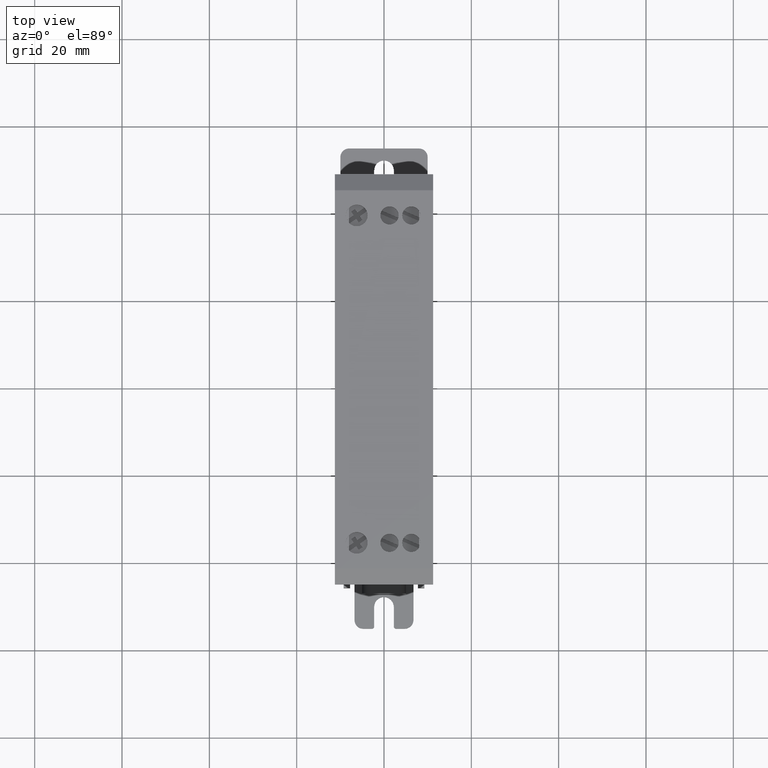
[diagram: clean part render]
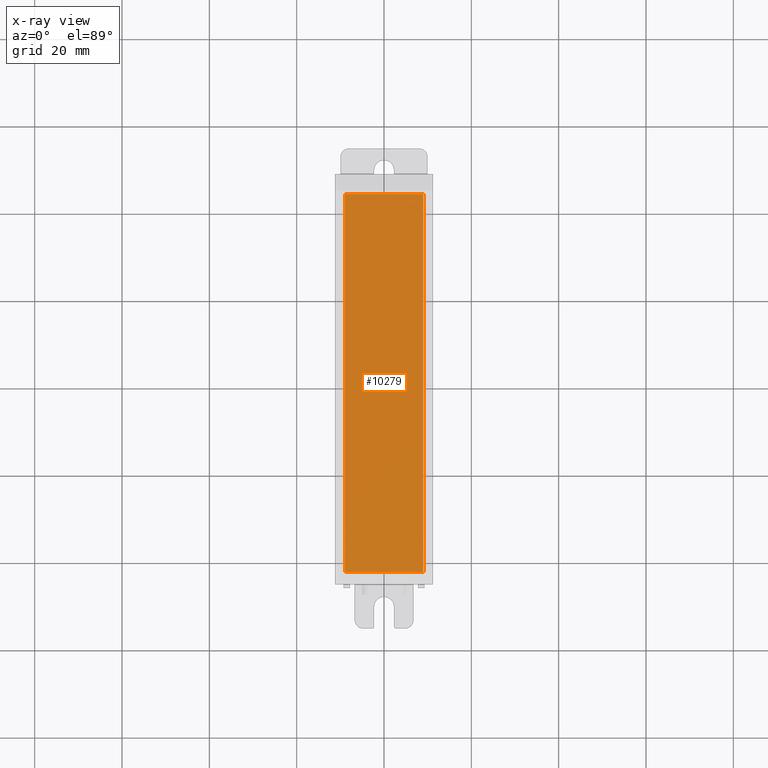
[diagram: x-ray — body ghosted, one internal face saturated and labeled with its STEP entity id]
A machine part, top view, then the same camera in x-ray: the body is ghosted and one INTERNAL B-rep face — a face not visible from any outside direction — is saturated and labeled: STEP entity #10279.
In plain terms, the highlighted planar face has unit normal (0, 0, 1).
Its self-contained STEP definition (entity closure, byte-faithful):
#431 = CARTESIAN_POINT ( 'NONE',  ( 0.000000000000000000, 1.704724409448818978, 0.000000000000000000 ) ) ;
#453 = LINE ( 'NONE', #12628, #6080 ) ;
#458 = PLANE ( 'NONE',  #15716 ) ;
#618 = FACE_OUTER_BOUND ( 'NONE', #14482, .T. ) ;
#995 = VERTEX_POINT ( 'NONE', #15344 ) ;
#1281 = VECTOR ( 'NONE', #4789, 39.37007874015748143 ) ;
#1408 = CARTESIAN_POINT ( 'NONE',  ( 0.3543307086614173040, 0.000000000000000000, 0.000000000000000000 ) ) ;
#1676 = ORIENTED_EDGE ( 'NONE', *, *, #10607, .T. ) ;
#2174 = CARTESIAN_POINT ( 'NONE',  ( -0.3543307086614173040, 1.704724409448818978, 0.000000000000000000 ) ) ;
#3081 = VECTOR ( 'NONE', #10376, 39.37007874015748143 ) ;
#3277 = CARTESIAN_POINT ( 'NONE',  ( 0.3543307086614173040, 1.704724409448818978, 0.000000000000000000 ) ) ;
#3578 = LINE ( 'NONE', #11043, #1281 ) ;
#4049 = DIRECTION ( 'NONE',  ( 0.000000000000000000, 1.000000000000000000, 0.000000000000000000 ) ) ;
#4282 = EDGE_CURVE ( 'NONE', #4591, #995, #453, .T. ) ;
#4591 = VERTEX_POINT ( 'NONE', #2174 ) ;
#4789 = DIRECTION ( 'NONE',  ( 1.000000000000000000, 0.000000000000000000, 0.000000000000000000 ) ) ;
#6080 = VECTOR ( 'NONE', #6609, 39.37007874015748143 ) ;
#6114 = VECTOR ( 'NONE', #4049, 39.37007874015748143 ) ;
#6609 = DIRECTION ( 'NONE',  ( -0.000000000000000000, -1.000000000000000000, -0.000000000000000000 ) ) ;
#7061 = ORIENTED_EDGE ( 'NONE', *, *, #8920, .T. ) ;
#8920 = EDGE_CURVE ( 'NONE', #13475, #4591, #14166, .T. ) ;
#9003 = DIRECTION ( 'NONE',  ( 1.000000000000000000, 0.000000000000000000, 0.000000000000000000 ) ) ;
#9172 = DIRECTION ( 'NONE',  ( 0.000000000000000000, 0.000000000000000000, 1.000000000000000000 ) ) ;
#10279 = ADVANCED_FACE ( 'NONE', ( #618 ), #458, .T. ) ;
#10376 = DIRECTION ( 'NONE',  ( -1.000000000000000000, -0.000000000000000000, -0.000000000000000000 ) ) ;
#10449 = LINE ( 'NONE', #1408, #6114 ) ;
#10607 = EDGE_CURVE ( 'NONE', #995, #15130, #3578, .T. ) ;
#11043 = CARTESIAN_POINT ( 'NONE',  ( 0.000000000000000000, -1.704724409448818978, 0.000000000000000000 ) ) ;
#11142 = EDGE_CURVE ( 'NONE', #15130, #13475, #10449, .T. ) ;
#11845 = ORIENTED_EDGE ( 'NONE', *, *, #4282, .T. ) ;
#11853 = CARTESIAN_POINT ( 'NONE',  ( 0.3543307086614173040, -1.704724409448818978, 0.000000000000000000 ) ) ;
#12090 = ORIENTED_EDGE ( 'NONE', *, *, #11142, .T. ) ;
#12628 = CARTESIAN_POINT ( 'NONE',  ( -0.3543307086614173040, 0.000000000000000000, 0.000000000000000000 ) ) ;
#13475 = VERTEX_POINT ( 'NONE', #3277 ) ;
#14166 = LINE ( 'NONE', #431, #3081 ) ;
#14482 = EDGE_LOOP ( 'NONE', ( #11845, #1676, #12090, #7061 ) ) ;
#15130 = VERTEX_POINT ( 'NONE', #11853 ) ;
#15344 = CARTESIAN_POINT ( 'NONE',  ( -0.3543307086614173040, -1.704724409448818978, 0.000000000000000000 ) ) ;
#15349 = CARTESIAN_POINT ( 'NONE',  ( 0.000000000000000000, 0.000000000000000000, 0.000000000000000000 ) ) ;
#15716 = AXIS2_PLACEMENT_3D ( 'NONE', #15349, #9172, #9003 ) ;